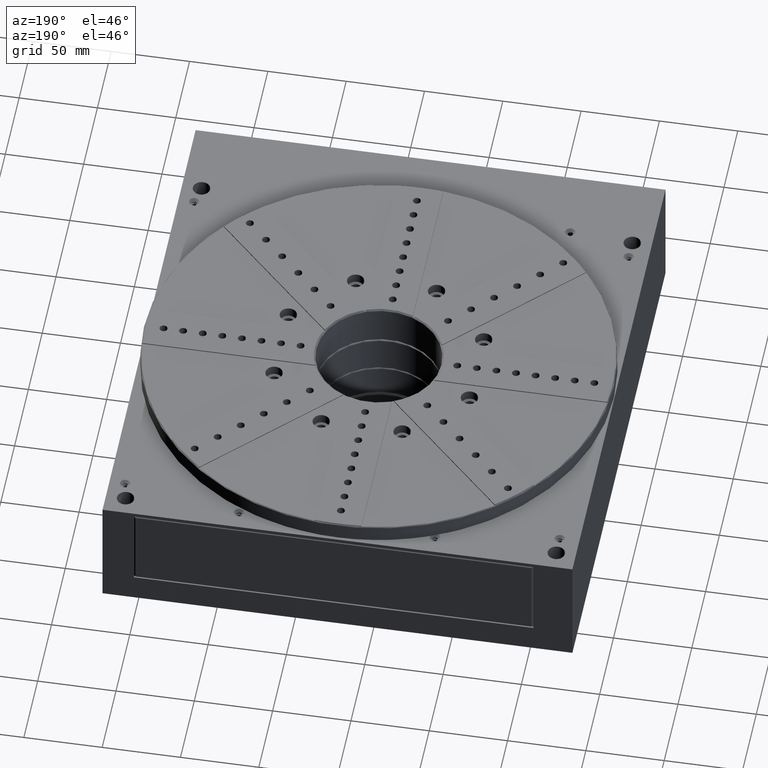
[diagram: clean part render]
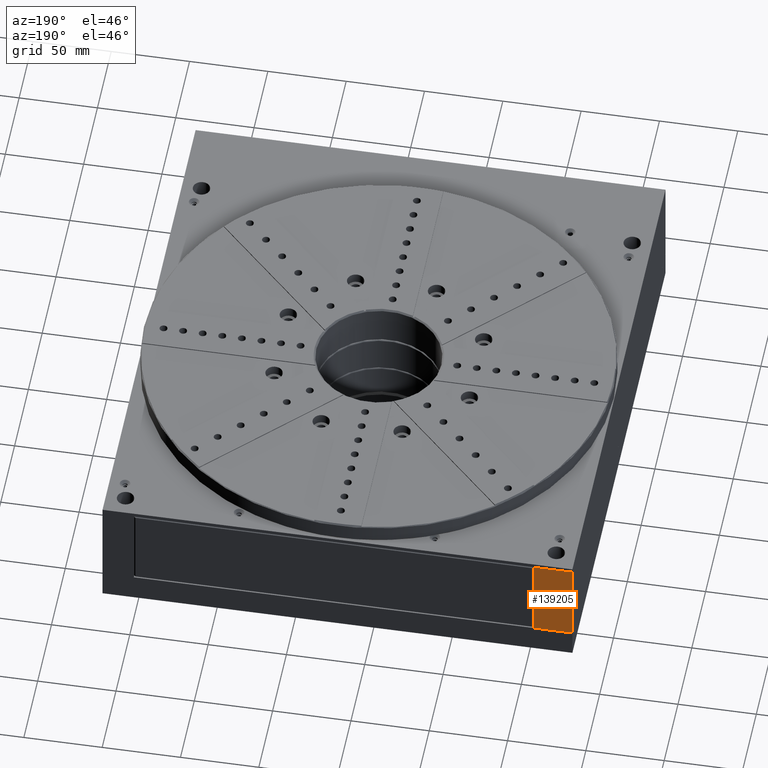
[diagram: same view with one face highlighted and labeled with its STEP entity id]
A machine part, auxiliary view. The second image highlights one B-rep face of the part: STEP entity #139205.
In plain terms, the highlighted planar face has unit normal (0, -1, 0).
Its self-contained STEP definition (entity closure, byte-faithful):
#10344 = CARTESIAN_POINT ( 'NONE',  ( -202.9981848826660098, 173.8558278231579948, 310.5000000000000000 ) ) ;
#10788 = ORIENTED_EDGE ( 'NONE', *, *, #153799, .T. ) ;
#11525 = ORIENTED_EDGE ( 'NONE', *, *, #105385, .F. ) ;
#11617 = LINE ( 'NONE', #42695, #70505 ) ;
#12005 = CARTESIAN_POINT ( 'NONE',  ( -202.9981848826660098, 173.8558278231579948, 365.5000000000000000 ) ) ;
#13608 = CARTESIAN_POINT ( 'NONE',  ( -227.9981848826659814, 173.8558278231579948, 365.5000000000000000 ) ) ;
#19024 = AXIS2_PLACEMENT_3D ( 'NONE', #12005, #55337, #112838 ) ;
#19564 = LINE ( 'NONE', #149618, #84932 ) ;
#22791 = CARTESIAN_POINT ( 'NONE',  ( -202.9981848826660098, 173.8558278231579948, 365.5000000000000000 ) ) ;
#25573 = LINE ( 'NONE', #22791, #47826 ) ;
#34628 = ORIENTED_EDGE ( 'NONE', *, *, #143232, .T. ) ;
#42695 = CARTESIAN_POINT ( 'NONE',  ( -202.9981848826660098, 173.8558278231579948, 310.5000000000000000 ) ) ;
#47826 = VECTOR ( 'NONE', #80277, 1000.000000000000000 ) ;
#55337 = DIRECTION ( 'NONE',  ( 0.000000000000000000, -1.000000000000000000, 0.000000000000000000 ) ) ;
#59359 = VERTEX_POINT ( 'NONE', #10344 ) ;
#65114 = DIRECTION ( 'NONE',  ( -1.000000000000000000, 0.000000000000000000, 0.000000000000000000 ) ) ;
#70505 = VECTOR ( 'NONE', #73757, 1000.000000000000000 ) ;
#73757 = DIRECTION ( 'NONE',  ( -1.000000000000000000, 0.000000000000000000, 0.000000000000000000 ) ) ;
#77952 = EDGE_CURVE ( 'NONE', #117956, #185200, #19564, .T. ) ;
#80277 = DIRECTION ( 'NONE',  ( 0.000000000000000000, 0.000000000000000000, -1.000000000000000000 ) ) ;
#81399 = ORIENTED_EDGE ( 'NONE', *, *, #77952, .F. ) ;
#82849 = VERTEX_POINT ( 'NONE', #165408 ) ;
#84932 = VECTOR ( 'NONE', #151449, 1000.000000000000000 ) ;
#93401 = CARTESIAN_POINT ( 'NONE',  ( -202.9981848826660098, 173.8558278231579948, 365.5000000000000000 ) ) ;
#105385 = EDGE_CURVE ( 'NONE', #82849, #117956, #165003, .T. ) ;
#112838 = DIRECTION ( 'NONE',  ( 0.000000000000000000, 0.000000000000000000, -1.000000000000000000 ) ) ;
#113769 = PLANE ( 'NONE',  #19024 ) ;
#117956 = VERTEX_POINT ( 'NONE', #13608 ) ;
#127930 = FACE_OUTER_BOUND ( 'NONE', #185032, .T. ) ;
#138667 = CARTESIAN_POINT ( 'NONE',  ( -227.9981848826659814, 173.8558278231579948, 310.5000000000000000 ) ) ;
#139205 = ADVANCED_FACE ( 'NONE', ( #127930 ), #113769, .F. ) ;
#143232 = EDGE_CURVE ( 'NONE', #59359, #185200, #11617, .T. ) ;
#147844 = VECTOR ( 'NONE', #65114, 1000.000000000000000 ) ;
#149618 = CARTESIAN_POINT ( 'NONE',  ( -227.9981848826659814, 173.8558278231579948, 365.5000000000000000 ) ) ;
#151449 = DIRECTION ( 'NONE',  ( 0.000000000000000000, 0.000000000000000000, -1.000000000000000000 ) ) ;
#153799 = EDGE_CURVE ( 'NONE', #82849, #59359, #25573, .T. ) ;
#165003 = LINE ( 'NONE', #93401, #147844 ) ;
#165408 = CARTESIAN_POINT ( 'NONE',  ( -202.9981848826660098, 173.8558278231579948, 365.5000000000000000 ) ) ;
#185032 = EDGE_LOOP ( 'NONE', ( #34628, #81399, #11525, #10788 ) ) ;
#185200 = VERTEX_POINT ( 'NONE', #138667 ) ;